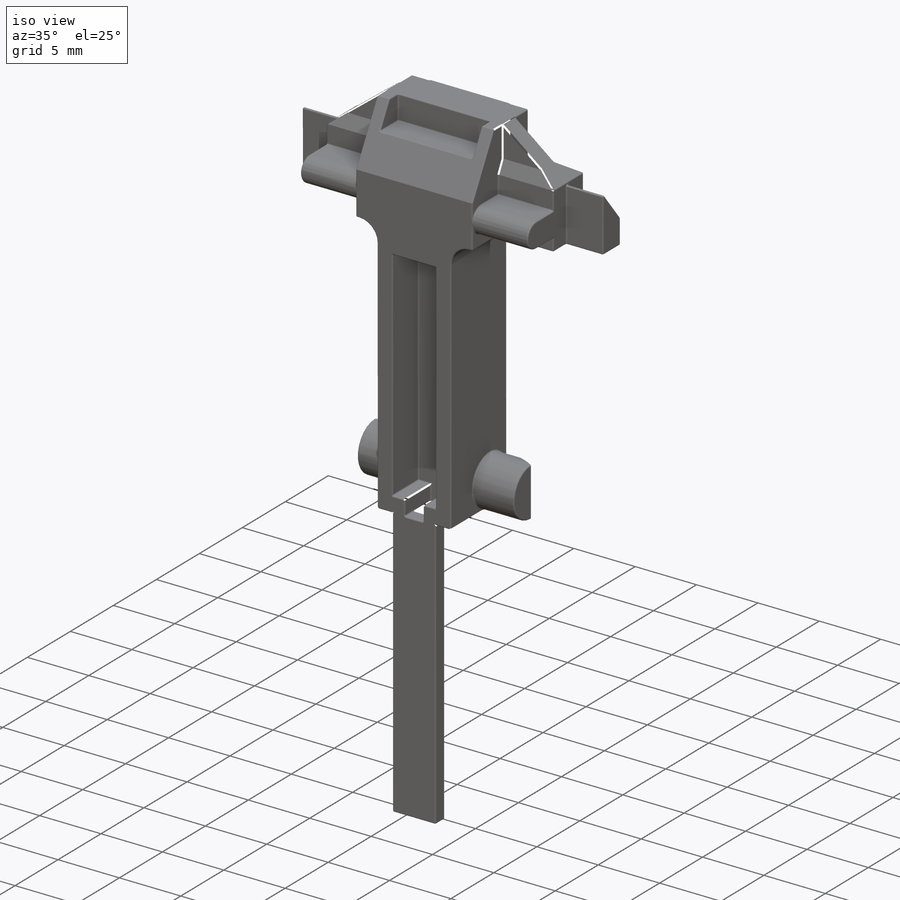
[diagram: iso view]
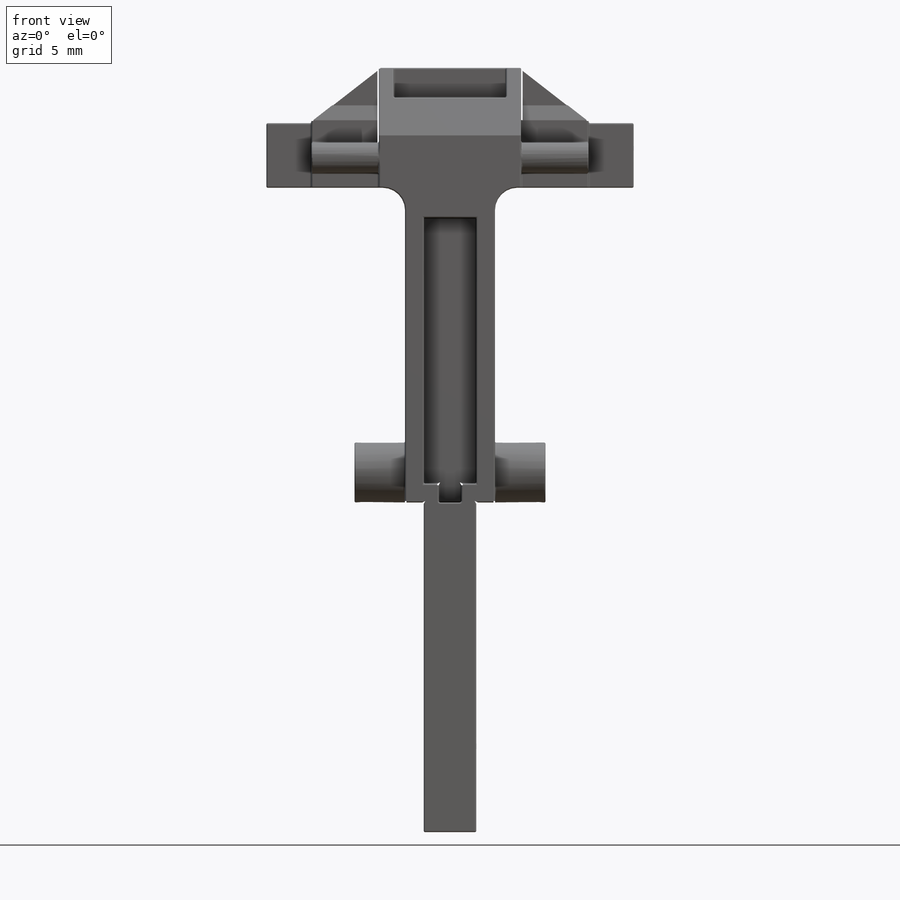
[diagram: front view]
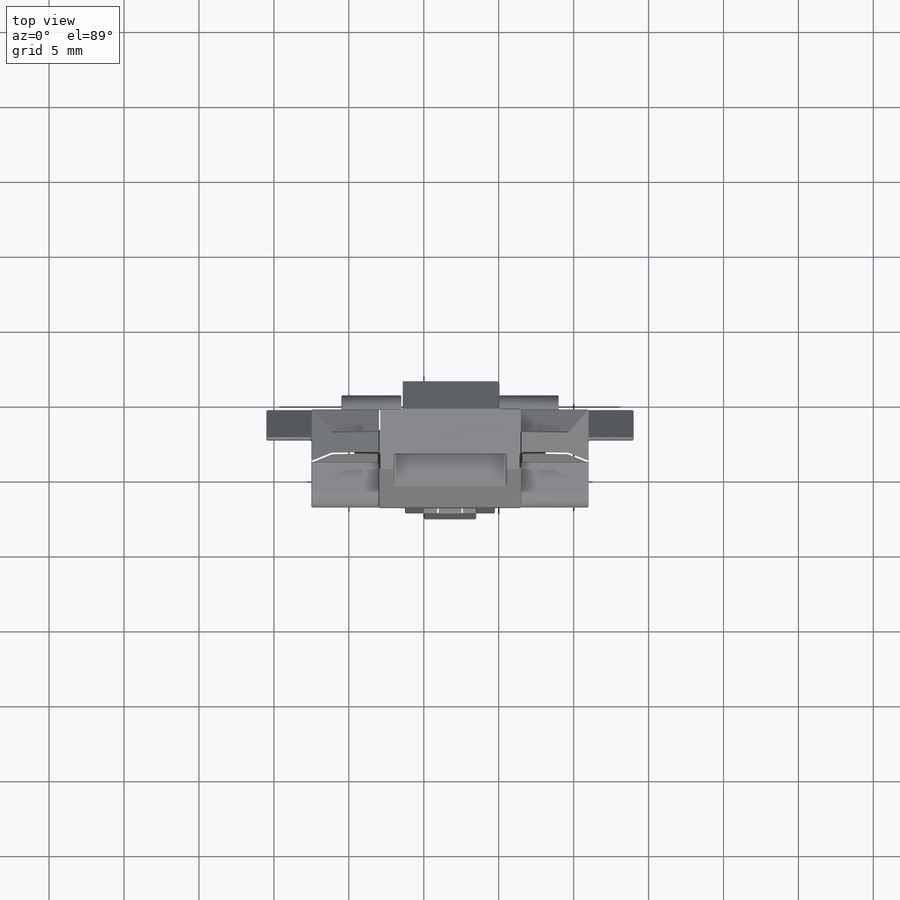
[diagram: top view]
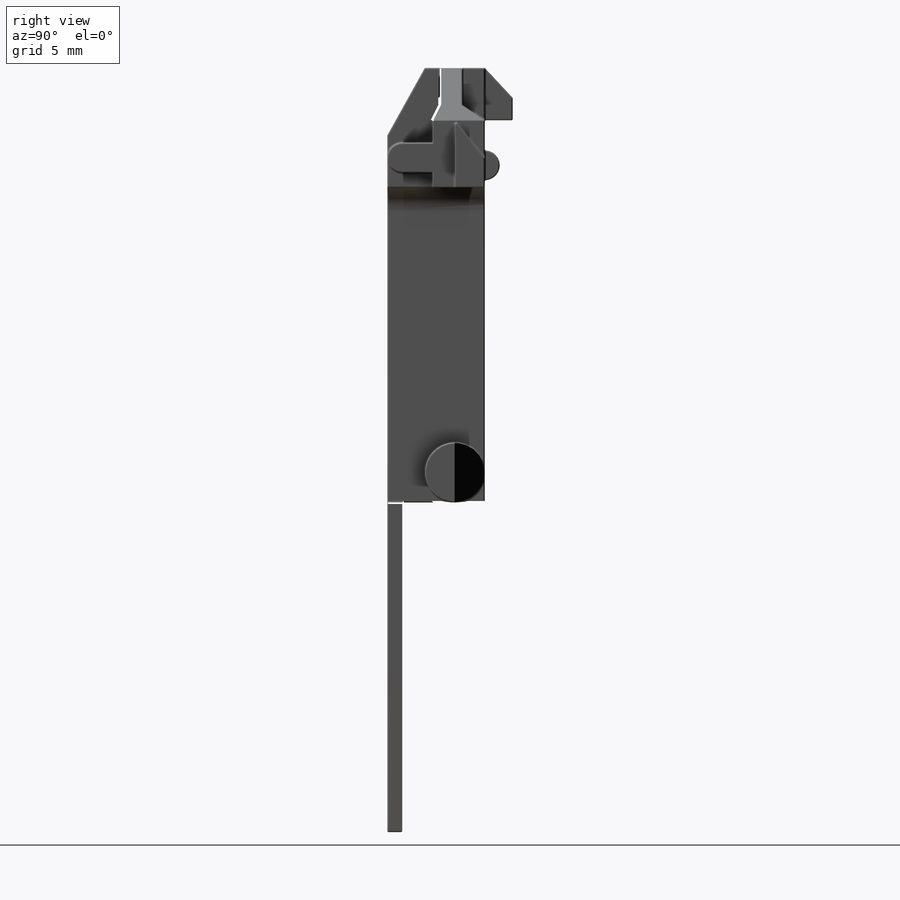
[diagram: right view]
SOLIDWORKS PART (.sldprt)
format: sldprt  version: not decoded by parser v0  size: 1,881,088 bytes
history: native  units: mm
features: sketch x25, extrude x14, fillet x14, cut_extrude x8, plane x3, material x1, mirror x1 (+11 scaffold rows collapsed)
feature tree (77):
  scaffold x11  (default folders/planes/origin — collapsed)
  material  "Material <not specified>"
  sketch  "Sketch1"  dims[c1.D1=~30.145541mm c1.D2=~3.939995mm c2.D1=3.5mm c2.D2=22.0mm]
  extrude  "Boss-Extrude1"  Depth=1mm
  sketch  "Sketch2"  dims[c1.D1=~14.765538mm c1.D2=~8.839095mm c2.D1=6.0mm c2.D2=1.25mm c2.D3=0.0mm c2.D4=21.0mm]
  extrude  "Boss-Extrude2"  Depth=1.5mm
  sketch  "Sketch4"  dims[D1=21.0mm D2=6.0mm]
  extrude  "Boss-Extrude3"  Depth=4mm
  sketch  "Sketch5"  dims[D1=4.0mm D2=2.0mm D3=2.0mm]
  extrude  "Boss-Extrude4"  Depth=3.375mm
  sketch  "Sketch6"  dims[c1.D1=~12.259111mm c1.D2=~18.17891mm c2.D1=0.0mm c2.D2=9.5mm c2.D3=1.75mm c2.D4=8.0mm]
  extrude  "Boss-Extrude5"  Depth=6.5mm
  sketch  "Sketch7"  dims[D1=4.5mm D2=4.5mm D3=4.5mm D4=4.5mm]
  extrude  "Boss-Extrude6"  Depth=1.5mm
  sketch  "Sketch8"  dims[c1.D1=~1.848092mm c1.D2=4.5mm c2.D1=~2.164908mm c2.D2=4.5mm c3.D1=1.0mm c3.D2=1.0mm c3.D3=2.0mm c3.D4=2.0mm]
  extrude  "Boss-Extrude7"  [1 undecoded]
  sketch  "Sketch9"  dims[D1=0.0mm D2=0.0mm D3=3.5mm D4=1.0mm]
  extrude  "Boss-Extrude8"  Depth=4.5mm
  sketch  "Sketch10"  dims[D1=~1.285714mm]
  cut_extrude  "Cut-Extrude1"  Depth=4.5mm
  plane  "Plane1"
  mirror  "Mirror1"
  sketch  "Sketch11"  dims[D1=2.0mm D2=2.0mm]
  extrude  "Boss-Extrude9"  Depth=3mm
  sketch  "Sketch12"  dims[D1=2.0mm D2=2.0mm]
  extrude  "Boss-Extrude10"  Depth=3mm
  sketch  "Sketch13"  dims[c1.D1=0.5mm c1.D2=1.0mm c1.D3=3.5mm c1.D4=2.5mm c1.D5=0.5mm c2.D5=~146.309932deg c2.D4=0.5mm c3.D4=137.0deg c3.D1=1.5mm]
  extrude  "Boss-Extrude11"  Depth=6.5mm
  sketch  "Sketch14"  dims[c1.D1=~0.895695mm c1.D2=~2.531311mm c2.D1=~1.713503mm c2.D2=~3.855381mm c3.D1=4.0mm c3.D2=2.0mm c3.D3=2.0mm c3.D4=4.0mm c3.D5=7.5mm c3.D6=7.5mm c3.D7=0.0mm c3.D8=0.0mm c4.D5=7.5mm c4.D6=7.5mm]
  extrude  "Boss-Extrude12"  Depth=1mm
  sketch  "Sketch15"  dims[c1.D1=3.5mm c1.D2=19.0mm c1.D3=1.25mm c2.D2=19.0mm c2.D4=1.5mm c2.D5=1.25mm c2.D6=1.25mm c2.D7=2.25mm]
  cut_extrude  "Cut-Extrude2"  Depth=3mm
  sketch  "Sketch16"  dims[D1=0.0mm D2=2.0mm]
  extrude  "Boss-Extrude13"  Depth=3.5mm
  sketch  "Sketch17"  dims[c1.D1=~1.945221mm c1.D2=~7.593125mm c2.D1=1.0mm c2.D2=1.0mm c2.D3=2.0mm]
  cut_extrude  "Cut-Extrude3"  [1 undecoded]
  fillet  "Fillet1"  Radius=1.5mm
  sketch  "Sketch18"  dims[D1=0.5mm D2=2.5mm]
  cut_extrude  "Cut-Extrude4"  Depth=49.5mm
  fillet  "Fillet2"  [1 undecoded]
  fillet  "Fillet3"  [1 undecoded]
  fillet  "Fillet4"  [1 undecoded]
  fillet  "Fillet5"  [1 undecoded]
  sketch  "Sketch19"  dims[D1=0.5mm D2=2.0mm D3=3.0mm D4=1.75mm]
  cut_extrude  "Cut-Extrude5"  Depth=4mm
  sketch  "Sketch20"  dims[c1.D1=~18.736727mm c1.D2=~2.828104mm c2.D1=0.0mm c2.D2=1.0mm]
  cut_extrude  "Cut-Extrude6"  Depth=2mm
  sketch  "Sketch21"
  plane  "Plane2"
  sketch  "Sketch23"
  plane  "Plane3"
  sketch  "Sketch25"  dims[D1=~5.115125mm D2=~5.06468mm]
  cut_extrude  "Cut-Extrude7"  Depth=2mm
  sketch  "Sketch26"  dims[D1=~4.772494mm D2=~4.12367mm]
  cut_extrude  "Cut-Extrude8"  Depth=2mm
  fillet  "Fillet9"  Radius=0.1mm
  fillet  "Fillet10"  Radius=0.1mm
  fillet  "Fillet11"  Radius=0.1mm
  fillet  "Fillet14"  Radius=0.05mm
  sketch  "Sketch27"  dims[c1.D1=~15.080898mm c1.D2=~4.401373mm c2.D1=3.5mm c2.D2=22.0mm c2.D3=1.25mm]
  extrude  "Boss-Extrude14"  Depth=1mm
  fillet  "Fillet17"  Radius=0.1mm
  fillet  "Fillet20"  Radius=0.1mm
  fillet  "Fillet21"  Radius=0.1mm
  fillet  "Fillet22"  Radius=0.1mm
  fillet  "Fillet23"  Radius=0.1mm
  sketch  "Sketch28"  dims[c1.D1=~1.24936mm c1.D2=~7.353318mm c1.D3=~0.502736mm c1.D4=~1.24936mm c1.D5=~1.766862mm c2.D1=~10.87875mm]
decode coverage: 53 of 62 modeling features carry decoded parameters
note: ~ marks probable driven/reference dimensions
note: 6 parameter values undecoded
summary: no parameter record found for 6 features
note: suppression state not decoded; provenance and decode notes live in map.json
